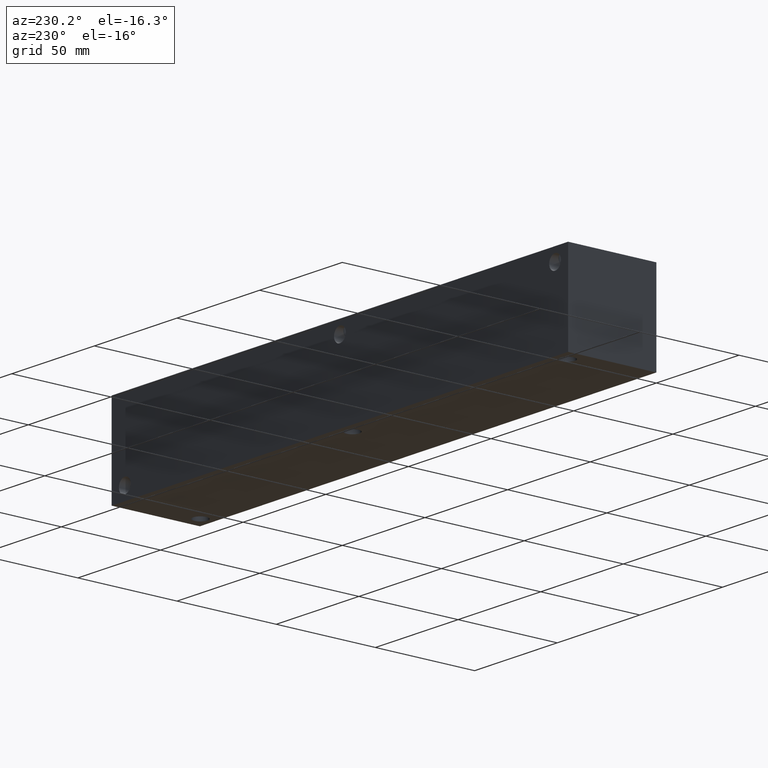
[diagram: clean part render]
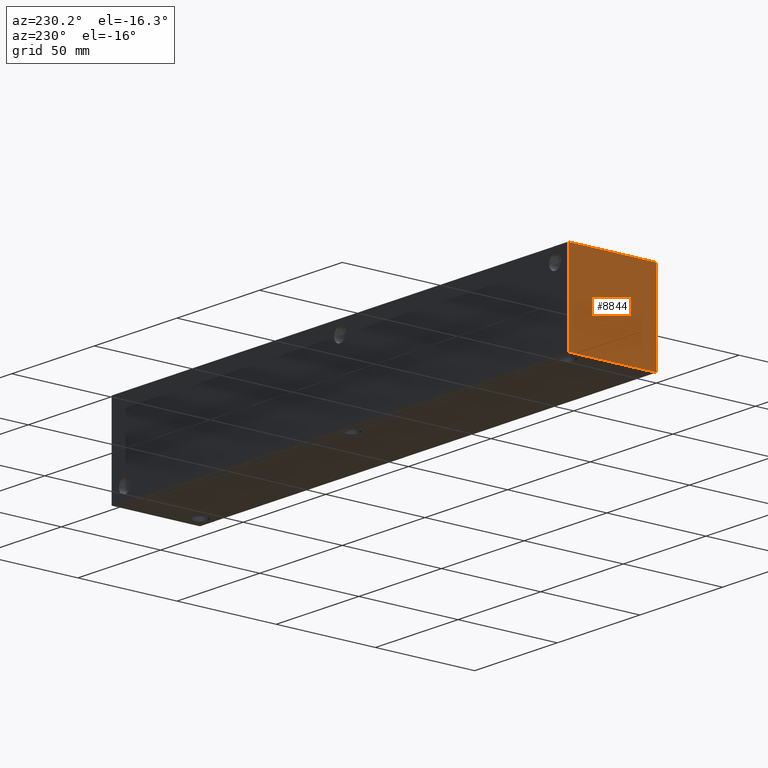
[diagram: same view with one face highlighted and labeled with its STEP entity id]
A machine part, auxiliary view. The second image highlights one B-rep face of the part: STEP entity #8844.
In plain terms, the highlighted planar face has unit normal (-1, 0, 0).
Its self-contained STEP definition (entity closure, byte-faithful):
#1262=FACE_OUTER_BOUND('',#1786,.T.);
#1786=EDGE_LOOP('',(#7807,#7808,#7809,#7810));
#2058=LINE('',#13752,#2813);
#2554=LINE('',#15424,#3309);
#2555=LINE('',#15425,#3310);
#2556=LINE('',#15426,#3311);
#2813=VECTOR('',#9832,10.);
#3309=VECTOR('',#11400,10.);
#3310=VECTOR('',#11401,10.);
#3311=VECTOR('',#11402,10.);
#3625=VERTEX_POINT('',#13745);
#3628=VERTEX_POINT('',#13750);
#4139=VERTEX_POINT('',#15422);
#4140=VERTEX_POINT('',#15423);
#4608=EDGE_CURVE('',#3628,#3625,#2058,.T.);
#5372=EDGE_CURVE('',#4139,#4140,#2554,.T.);
#5373=EDGE_CURVE('',#4140,#3625,#2555,.T.);
#5374=EDGE_CURVE('',#4139,#3628,#2556,.T.);
#7807=ORIENTED_EDGE('',*,*,#5372,.T.);
#7808=ORIENTED_EDGE('',*,*,#5373,.T.);
#7809=ORIENTED_EDGE('',*,*,#4608,.F.);
#7810=ORIENTED_EDGE('',*,*,#5374,.F.);
#8077=PLANE('',#9457);
#8844=ADVANCED_FACE('',(#1262),#8077,.T.);
#9457=AXIS2_PLACEMENT_3D('',#15421,#11398,#11399);
#9832=DIRECTION('',(0.,-1.,0.));
#11398=DIRECTION('center_axis',(-1.,0.,0.));
#11399=DIRECTION('ref_axis',(0.,-1.,0.));
#11400=DIRECTION('',(0.,-1.,0.));
#11401=DIRECTION('',(0.,0.,1.));
#11402=DIRECTION('',(0.,0.,1.));
#13745=CARTESIAN_POINT('',(0.,0.,44.45));
#13750=CARTESIAN_POINT('',(0.,44.45,44.45));
#13752=CARTESIAN_POINT('',(0.,44.45,44.45));
#15421=CARTESIAN_POINT('Origin',(0.,44.45,0.));
#15422=CARTESIAN_POINT('',(0.,44.45,0.));
#15423=CARTESIAN_POINT('',(0.,0.,0.));
#15424=CARTESIAN_POINT('',(0.,44.45,0.));
#15425=CARTESIAN_POINT('',(0.,0.,0.));
#15426=CARTESIAN_POINT('',(0.,44.45,0.));